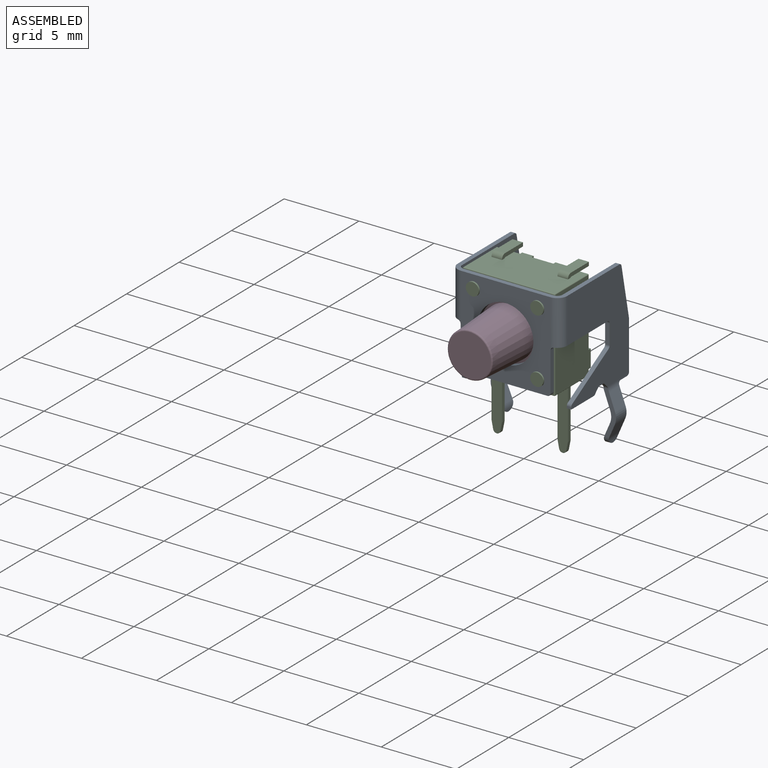
[diagram: assembled view]
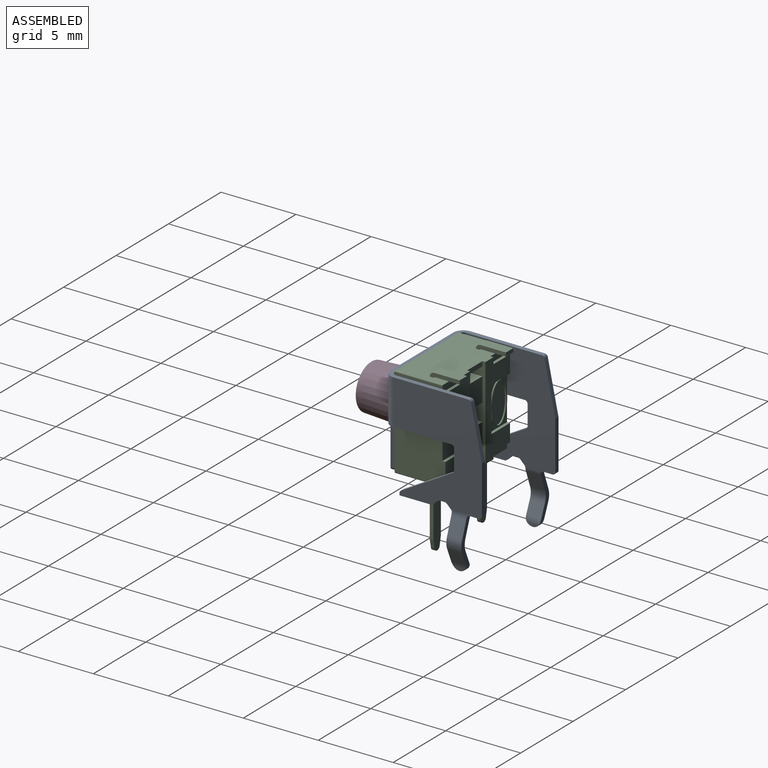
[diagram: assembled view, second angle]
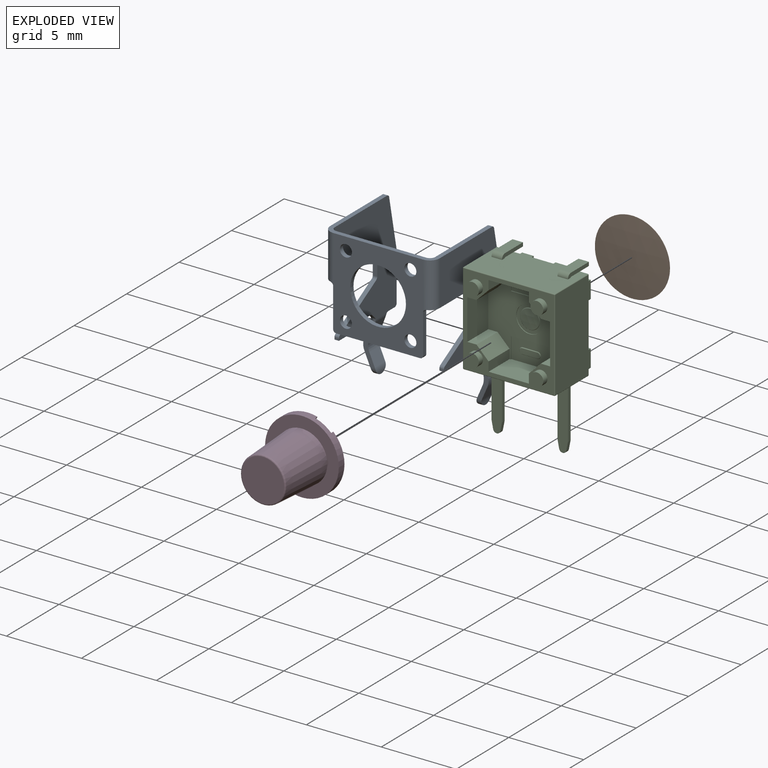
[diagram: exploded view]
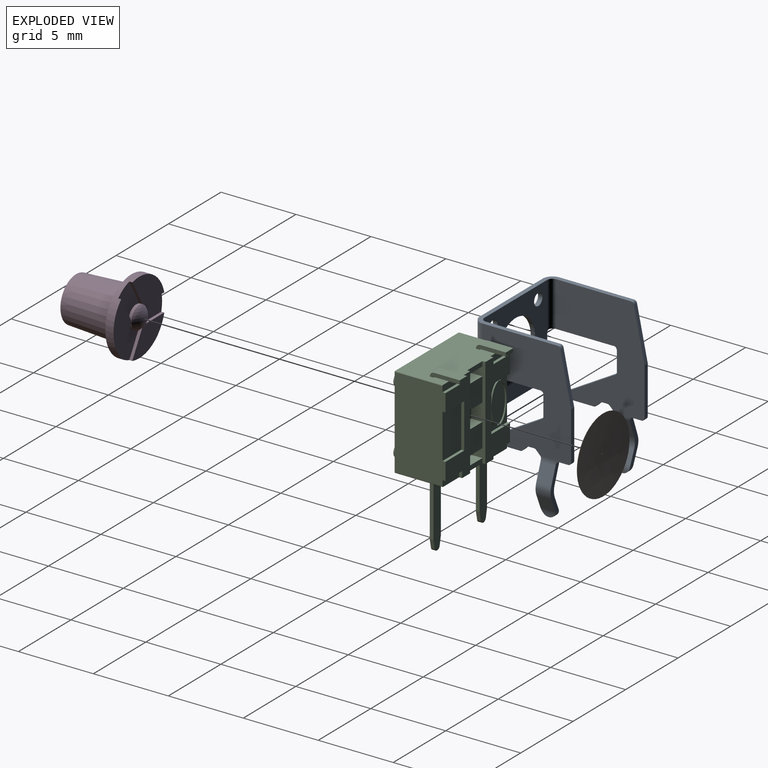
[diagram: exploded view, second angle]
ASSEMBLY  parts=4 mates=3
PART A: 97 faces, bbox 8.4x6.6x10.5 mm
  f0: cylinder r=1mm len=1mm, axis (0,1,0), area 0.8mm2, adj f40,f41,f57,f58
  f1: cylinder r=1mm len=1mm, axis (0,-1,0), area 0.8mm2, adj f27,f28,f54,f55
  f2: cylinder r=0.4mm len=0.8mm, axis (0,-1,0), area 0.8mm2, adj f13,f14
  f3: cylinder r=0.4mm len=0.8mm, axis (0,-1,0), area 0.8mm2, adj f13,f14
  f4: cylinder r=0.4mm len=0.8mm, axis (0,-1,0), area 0.8mm2, adj f13,f14
  f5: cylinder r=0.4mm len=0.8mm, axis (0,-1,0), area 0.8mm2, adj f13,f14
  f6: cylinder r=1.86mm len=3.71mm, axis (0,-1,0), area 3.5mm2, adj f13,f14
  f7: cylinder r=0.5mm len=1mm, axis (-1,0,0), area 0.5mm2, adj f40,f41,f59,f60,f61,f94,f95
  f8: cylinder r=0.5mm len=1mm, axis (1,0,0), area 0.5mm2, adj f27,f28,f52,f53,f54,f91,f92
  f9: plane 2.6x0.3mm, normal (1,0,0), area 0.8mm2, adj f13,f14,f63,f84
  f10: plane 2.6x0.3mm, normal (-1,0,0), area 0.8mm2, adj f13,f14,f64,f83
  f11: plane 7.3x5.64mm, normal (0,0,1), area 5.3mm2, adj f13,f14,f16,f17,f18,f19,f33,f34
  f12: plane 5.6x0.3mm, normal (0,0,-1), area 1.7mm2, adj f13,f14,f63,f64
  f13: plane 6x6mm, normal (0,1,0), area 23.2mm2, adj f2,f3,f4,f5,f6,f9,f10,f11
  f14: plane 6x6mm, normal (0,-1,0), area 23.2mm2, adj f2,f3,f4,f5,f6,f9,f10,f11
  f15: plane 4.47x0.45mm, normal (0,0,-1), area 1.3mm2, adj f16,f17,f18,f19,f84,f86
  f16: cylinder r=0.65mm len=3.2mm, axis (0,0,-1), area 3.1mm2, adj f11,f14,f15,f18,f84
  f17: cylinder r=0.35mm len=3.2mm, axis (0,0,-1), area 1.7mm2, adj f11,f13,f15,f19,f84
  f18: plane 7x5.9mm, normal (1,0,0), area 28mm2, adj f11,f15,f16,f20,f21,f22,f23,f24
  f19: plane 7.1x5.9mm, normal (-1,0,0), area 28.3mm2, adj f11,f15,f17,f20,f21,f22,f23,f24
  f20: plane 1.32x0.3mm, normal (0,-1,0), area 0.4mm2, adj f18,f19,f85,f86
  f21: plane 3.45x1.99mm, normal (0,-0.5,0.87), area 1.2mm2, adj f18,f19,f79,f85
  f22: plane 0.3x0.13mm, normal (0,-1,0), area 0mm2, adj f18,f19,f23,f79
  f23: plane 2.12x0.3mm, normal (0,0,-1), area 0.6mm2, adj f18,f19,f22,f75
  f24: plane 0.3x0.28mm, normal (0,0.71,-0.71), area 0.1mm2, adj f18,f19,f75,f76
  f25: plane 0.33x0.3mm, normal (0,0,-1), area 0.1mm2, adj f18,f19,f76,f78
  f26: plane 0.3x0.28mm, normal (0,-0.71,-0.71), area 0.1mm2, adj f18,f19,f77,f78,f89
  f27: plane 2.92x0.83mm, normal (0,-1,0), area 0.9mm2, adj f1,f8,f19,f49,f50,f51,f54,f55
  f28: plane 2.8x0.82mm, normal (0,1,0), area 0.9mm2, adj f1,f8,f49,f50,f51,f54,f55,f69
  f29: plane 0.6x0.3mm, normal (0,0,-1), area 0.2mm2, adj f19,f67,f69,f89
  f30: plane 3.18x0.3mm, normal (0,1,0), area 1mm2, adj f18,f19,f65,f67
  f31: plane 3.42x0.71mm, normal (0,0.98,0.2), area 1mm2, adj f18,f19,f65,f87
  f32: plane 4.47x0.45mm, normal (0,0,-1), area 1.3mm2, adj f33,f34,f35,f36,f82,f83
  f33: cylinder r=0.65mm len=3.2mm, axis (0,0,1), area 3.1mm2, adj f11,f14,f32,f35,f83
  f34: cylinder r=0.35mm len=3.2mm, axis (0,0,1), area 1.7mm2, adj f11,f13,f32,f36,f83
  f35: plane 7x5.9mm, normal (-1,0,0), area 28mm2, adj f11,f32,f33,f37,f38,f42,f43,f44
  f36: plane 7.1x5.9mm, normal (1,0,0), area 28.3mm2, adj f11,f32,f34,f37,f38,f39,f41,f42
  f37: plane 3.42x0.71mm, normal (0,0.98,0.2), area 1mm2, adj f35,f36,f66,f88
  f38: plane 3.18x0.3mm, normal (0,1,0), area 1mm2, adj f35,f36,f66,f68
  f39: plane 0.6x0.3mm, normal (0,0,-1), area 0.2mm2, adj f36,f68,f70,f90
  f40: plane 2.8x0.82mm, normal (0,1,0), area 0.9mm2, adj f0,f7,f56,f57,f58,f61,f62,f70
  f41: plane 2.92x0.83mm, normal (0,-1,0), area 0.9mm2, adj f0,f7,f36,f56,f57,f58,f61,f62
  f42: plane 0.3x0.28mm, normal (0,-0.71,-0.71), area 0.1mm2, adj f35,f36,f73,f74,f90
  f43: plane 0.33x0.3mm, normal (0,0,-1), area 0.1mm2, adj f35,f36,f72,f73
  f44: plane 0.3x0.28mm, normal (0,0.71,-0.71), area 0.1mm2, adj f35,f36,f71,f72
  f45: plane 2.12x0.3mm, normal (0,0,-1), area 0.6mm2, adj f35,f36,f46,f71
  f46: plane 0.3x0.13mm, normal (0,-1,0), area 0mm2, adj f35,f36,f45,f80
  f47: plane 3.45x1.99mm, normal (0,-0.5,0.87), area 1.2mm2, adj f35,f36,f80,f81
  f48: plane 1.32x0.3mm, normal (0,-1,0), area 0.4mm2, adj f35,f36,f81,f82
  f49: plane 1.03x0.1mm, normal (-0.98,0,-0.18), area 0.1mm2, adj f19,f27,f28,f50,f69
  f50: plane 1.17x1mm, normal (-0.94,0,-0.35), area 1.2mm2, adj f27,f28,f49,f93
  f51: plane 1x0.84mm, normal (-0.92,0,0.4), area 0.9mm2, adj f27,f28,f92,f93
  f52: plane 0.71x0.15mm, normal (-1,0,0), area 0.1mm2, adj f8,f92
  f53: plane 0.56x0.09mm, normal (1,0,0), area 0mm2, adj f8,f91
  f54: plane 1x0.89mm, normal (0.92,0,-0.4), area 1mm2, adj f1,f8,f27,f28,f91
  f55: plane 1.12x1mm, normal (0.94,0,0.35), area 1.2mm2, adj f1,f27,f28,f89
  f56: plane 1.03x0.1mm, normal (0.98,0,-0.18), area 0.1mm2, adj f36,f40,f41,f57,f70
  f57: plane 1.17x1mm, normal (0.94,0,-0.35), area 1.2mm2, adj f0,f40,f41,f56
  f58: plane 1x0.84mm, normal (0.92,0,0.4), area 0.9mm2, adj f0,f40,f41,f95
  f59: plane 0.71x0.15mm, normal (1,0,0), area 0.1mm2, adj f7,f95
  f60: plane 0.56x0.09mm, normal (-1,0,0), area 0mm2, adj f7,f94
  f61: plane 1x0.89mm, normal (-0.92,0,-0.4), area 1mm2, adj f7,f40,f41,f94,f96
  f62: plane 1.12x1mm, normal (-0.94,0,0.35), area 1.2mm2, adj f40,f41,f90,f96
  f63: cylinder r=0.2mm len=0.3mm, axis (0,-1,0), area 0.1mm2, adj f9,f12,f13,f14
  f64: cylinder r=0.2mm len=0.3mm, axis (0,-1,0), area 0.1mm2, adj f10,f12,f13,f14
  f65: cylinder r=0.2mm len=0.3mm, axis (-1,0,0), area 0mm2, adj f18,f19,f30,f31
  f66: cylinder r=0.2mm len=0.3mm, axis (1,0,0), area 0mm2, adj f35,f36,f37,f38
  f67: cylinder r=0.2mm len=0.3mm, axis (-1,0,0), area 0.1mm2, adj f18,f19,f29,f30,f89
  f68: cylinder r=0.2mm len=0.3mm, axis (1,0,0), area 0.1mm2, adj f35,f36,f38,f39,f90
  f69: cylinder r=0.2mm len=0.34mm, axis (1,0,0), area 0.1mm2, adj f19,f28,f29,f49,f89
  f70: cylinder r=0.2mm len=0.34mm, axis (-1,0,0), area 0.1mm2, adj f36,f39,f40,f56,f90
  f71: cylinder r=0.2mm len=0.3mm, axis (1,0,0), area 0mm2, adj f35,f36,f44,f45
  f72: cylinder r=0.2mm len=0.3mm, axis (-1,0,0), area 0mm2, adj f35,f36,f43,f44
  f73: cylinder r=0.2mm len=0.3mm, axis (-1,0,0), area 0mm2, adj f35,f36,f42,f43
  f74: cylinder r=0.2mm len=0.31mm, axis (-1,0,0), area 0mm2, adj f36,f41,f42,f90
  f75: cylinder r=0.2mm len=0.3mm, axis (-1,0,0), area 0mm2, adj f18,f19,f23,f24
  f76: cylinder r=0.2mm len=0.3mm, axis (1,0,0), area 0mm2, adj f18,f19,f24,f25
  f77: cylinder r=0.2mm len=0.31mm, axis (1,0,0), area 0mm2, adj f19,f26,f27,f89
  f78: cylinder r=0.2mm len=0.3mm, axis (1,0,0), area 0mm2, adj f18,f19,f25,f26
  f79: cylinder r=0.2mm len=0.3mm, axis (-1,0,0), area 0.1mm2, adj f18,f19,f21,f22
  f80: cylinder r=0.2mm len=0.3mm, axis (1,0,0), area 0.1mm2, adj f35,f36,f46,f47
  f81: cylinder r=0.2mm len=0.3mm, axis (-1,0,0), area 0.1mm2, adj f35,f36,f47,f48
  f82: cylinder r=0.2mm len=0.3mm, axis (-1,0,0), area 0.1mm2, adj f32,f35,f36,f48
  f83: cylinder r=0.2mm len=0.36mm, axis (0,1,0), area 0.1mm2, adj f10,f32,f33,f34
  f84: cylinder r=0.2mm len=0.36mm, axis (0,-1,0), area 0.1mm2, adj f9,f15,f16,f17
  f85: cylinder r=0.2mm len=0.3mm, axis (1,0,0), area 0.1mm2, adj f18,f19,f20,f21
  f86: cylinder r=0.2mm len=0.3mm, axis (1,0,0), area 0.1mm2, adj f15,f18,f19,f20
  f87: cylinder r=0.2mm len=0.3mm, axis (-1,0,0), area 0.1mm2, adj f11,f18,f19,f31
  f88: cylinder r=0.2mm len=0.3mm, axis (1,0,0), area 0.1mm2, adj f11,f35,f36,f37
  f89: cylinder r=1mm len=2.04mm, axis (0,1,0), area 0.4mm2, adj f18,f26,f27,f28,f29,f55,f67,f69
  f90: cylinder r=1mm len=2.04mm, axis (0,-1,0), area 0.4mm2, adj f35,f39,f40,f41,f42,f62,f68,f70
  f91: cylinder r=1mm len=1mm, axis (0,1,0), area 0.3mm2, adj f8,f53,f54
  f92: cylinder r=1mm len=1mm, axis (0,-1,0), area 0.4mm2, adj f8,f27,f28,f51,f52
  f93: cylinder r=1mm len=1mm, axis (0,1,0), area 0.8mm2, adj f27,f28,f50,f51
  f94: cylinder r=1mm len=1mm, axis (0,1,0), area 0.3mm2, adj f7,f60,f61
  f95: cylinder r=1mm len=1mm, axis (0,-1,0), area 0.4mm2, adj f7,f40,f41,f58,f59
  f96: cylinder r=1mm len=1mm, axis (0,-1,0), area 0.8mm2, adj f40,f41,f61,f62
PART B: 3 faces, bbox 5x0.2x5 mm
  f0: sphere r=31.3mm, area 19.7mm2, adj f2
  f1: sphere r=31.3mm, area 19.7mm2, adj f2
  f2: cylinder r=2.5mm len=5mm, axis (0,1,0), area 0.3mm2, adj f0,f1
PART C: 145 faces, bbox 6.8x4.4x10.9 mm
  f0: bspline ~2.76x1.5mm, area 0.3mm2, adj f15,f130,f131
  f1: bspline ~2.58x1.34mm, area 0.3mm2, adj f129,f131,f132
  f2: torus R=0.17mm, axis (0,1,0), area 0mm2, adj f3,f89,f101,f102
  f3: torus R=0.23mm, axis (0,1,0), area 0mm2, adj f2,f21,f98,f100
  f4: torus R=0.23mm, axis (0,1,0), area 0mm2, adj f20,f92,f93,f96
  f5: torus R=0.17mm, axis (0,-1,0), area 0mm2, adj f90,f91,f94,f95
  f6: torus R=0.68mm, axis (0,-1,0), area 0.2mm2, adj f9,f82
  f7: torus R=0.62mm, axis (0,1,0), area 0.1mm2, adj f8,f9
  f8: sphere r=4.25mm, area 1.2mm2, adj f7
  f9: cylinder r=0.65mm len=1.3mm, axis (0,-1,0), area 0mm2, adj f6,f7
  f10: cylinder r=0.9mm len=1.8mm, axis (0,-1,0), area 0.3mm2, adj f50,f82
  f11: cylinder r=0.43mm len=0.87mm, axis (0,1,0), area 1.1mm2, adj f31,f54
  f12: cylinder r=0.43mm len=0.87mm, axis (0,1,0), area 1.1mm2, adj f31,f53
  f13: cylinder r=0.43mm len=0.87mm, axis (0,1,0), area 1.1mm2, adj f31,f52
  f14: cylinder r=0.43mm len=0.87mm, axis (0,1,0), area 1.1mm2, adj f31,f51
  f15: plane 2.98x1.78mm, normal (0,1,0), area 2.1mm2, adj f0,f32,f57,f58,f59,f130
  f16: plane 6.05x3.37mm, normal (0,0,1), area 19.1mm2, adj f24,f26,f29,f61,f62,f63,f64,f65
  f17: cylinder r=0.24mm len=0.48mm, axis (0,1,0), area 0.2mm2, adj f108,f110,f113,f114
  f18: cylinder r=0.24mm len=0.48mm, axis (0,1,0), area 0.2mm2, adj f104,f106,f111,f112
  f19: plane 6.05x3.37mm, normal (0,0,-1), area 19.1mm2, adj f22,f28,f30,f55,f62,f63,f64,f71
  f20: plane 2.5x1.4mm, normal (0,-1,0), area 2.9mm2, adj f4,f47,f83,f84,f85,f91,f92,f93
  f21: plane 2.5x1.4mm, normal (0,-1,0), area 2.9mm2, adj f3,f39,f86,f87,f88,f97,f98,f100
  f22: plane 1.45x0.31mm, normal (0,1,0), area 0.4mm2, adj f19,f62,f64,f79
  f23: plane 1.58x1.45mm, normal (0,1,0), area 2.3mm2, adj f62,f64,f74,f76
  f24: plane 1.45x0.31mm, normal (0,1,0), area 0.4mm2, adj f16,f62,f64,f73
  f25: plane 1.58x1.45mm, normal (0,1,0), area 2.3mm2, adj f62,f64,f77,f80
  f26: plane 1.58x0.43mm, normal (0,1,0), area 0.7mm2, adj f16,f33,f65,f66,f133
  f27: plane 2.98x1.78mm, normal (0,1,0), area 5.3mm2, adj f33,f67,f68,f69
  f28: plane 1.58x0.43mm, normal (0,1,0), area 0.7mm2, adj f19,f33,f70,f71,f138
  f29: plane 1.58x0.43mm, normal (0,1,0), area 0.7mm2, adj f16,f32,f60,f61,f135
  f30: plane 1.58x0.43mm, normal (0,1,0), area 0.7mm2, adj f19,f32,f55,f56,f144
  f31: plane 6.05x6.05mm, normal (0,-1,0), area 10.4mm2, adj f11,f12,f13,f14,f34,f35,f36,f37
  f32: plane 6.05x3.37mm, normal (-1,0,0), area 19.6mm2, adj f15,f29,f30,f56,f57,f59,f60,f63
  f33: plane 6.05x3.37mm, normal (1,0,0), area 19.6mm2, adj f26,f27,f28,f66,f67,f69,f70,f72
  f34: plane 2x0.62mm, normal (0,0,1), area 1.2mm2, adj f31,f35,f49,f50
  f35: plane 2.69x2mm, normal (1,0,0), area 5.4mm2, adj f31,f34,f36,f50
  f36: plane 2x0.62mm, normal (0,0,-1), area 1.2mm2, adj f31,f35,f37,f50
  f37: plane 2x0.8mm, normal (0.71,0,-0.71), area 2.3mm2, adj f31,f36,f38,f50
  f38: plane 2x0.62mm, normal (1,0,0), area 1.2mm2, adj f31,f37,f39,f50
  f39: plane 2.69x2.05mm, normal (0,0,-1), area 5.5mm2, adj f21,f31,f38,f40,f50,f86,f88
  f40: plane 2x0.62mm, normal (-1,0,0), area 1.2mm2, adj f31,f39,f41,f50
  f41: plane 2x0.8mm, normal (-0.71,0,-0.71), area 2.3mm2, adj f31,f40,f42,f50
  f42: plane 2x0.62mm, normal (0,0,-1), area 1.2mm2, adj f31,f41,f43,f50
  f43: plane 2.69x2mm, normal (-1,0,0), area 5.4mm2, adj f31,f42,f44,f50
  f44: plane 2x0.62mm, normal (0,0,1), area 1.2mm2, adj f31,f43,f45,f50
  f45: plane 2x0.8mm, normal (-0.71,0,0.71), area 2.3mm2, adj f31,f44,f46,f50
  f46: plane 2x0.62mm, normal (-1,0,0), area 1.2mm2, adj f31,f45,f47,f50
  f47: plane 2.69x2.05mm, normal (0,0,1), area 5.5mm2, adj f20,f31,f46,f48,f50,f83,f85
  f48: plane 2x0.62mm, normal (1,0,0), area 1.2mm2, adj f31,f47,f49,f50
  f49: plane 2x0.8mm, normal (0.71,0,0.71), area 2.3mm2, adj f31,f34,f48,f50
  f50: plane 5.53x5.53mm, normal (0,-1,0), area 14.3mm2, adj f10,f34,f35,f36,f37,f38,f39,f40
  f51: plane 0.87x0.87mm, normal (0,-1,0), area 0.6mm2, adj f14
  f52: plane 0.87x0.87mm, normal (0,-1,0), area 0.6mm2, adj f13
  f53: plane 0.87x0.87mm, normal (0,-1,0), area 0.6mm2, adj f12
  f54: plane 0.87x0.87mm, normal (0,-1,0), area 0.6mm2, adj f11
  f55: plane 0.43x0.2mm, normal (-1,0,0), area 0.1mm2, adj f19,f30,f56,f63
  f56: plane 1.58x0.2mm, normal (0,0,-1), area 0.3mm2, adj f30,f32,f55,f63
  f57: plane 1.78x0.2mm, normal (0,0,1), area 0.4mm2, adj f15,f32,f58,f63
  f58: plane 2.98x0.2mm, normal (-1,0,0), area 0.6mm2, adj f15,f57,f59,f63
  f59: plane 1.78x0.2mm, normal (0,0,-1), area 0.4mm2, adj f15,f32,f58,f63
  f60: plane 1.58x0.2mm, normal (0,0,1), area 0.3mm2, adj f29,f32,f61,f63
  f61: plane 0.43x0.2mm, normal (-1,0,0), area 0.1mm2, adj f16,f29,f60,f63
  f62: plane 6.15x0.95mm, normal (1,0,0), area 3mm2, adj f16,f19,f22,f23,f24,f25,f63,f73
  f63: plane 6.15x2.35mm, normal (0,1,0), area 7.8mm2, adj f16,f19,f32,f55,f56,f57,f58,f59
  f64: plane 6.15x0.95mm, normal (-1,0,0), area 3mm2, adj f16,f19,f22,f23,f24,f25,f72,f73
  f65: plane 0.43x0.2mm, normal (1,0,0), area 0.1mm2, adj f16,f26,f66,f72
  f66: plane 1.58x0.2mm, normal (0,0,1), area 0.3mm2, adj f26,f33,f65,f72
  f67: plane 1.78x0.2mm, normal (0,0,-1), area 0.4mm2, adj f27,f33,f68,f72
  f68: plane 2.98x0.2mm, normal (1,0,0), area 0.6mm2, adj f27,f67,f69,f72
  f69: plane 1.78x0.2mm, normal (0,0,1), area 0.4mm2, adj f27,f33,f68,f72
  f70: plane 1.58x0.2mm, normal (0,0,-1), area 0.3mm2, adj f28,f33,f71,f72
  f71: plane 0.43x0.2mm, normal (1,0,0), area 0.1mm2, adj f19,f28,f70,f72
  f72: plane 6.15x2.35mm, normal (0,1,0), area 7.8mm2, adj f16,f19,f33,f64,f65,f66,f67,f68
  f73: plane 1.45x0.75mm, normal (0,0,-1), area 1.1mm2, adj f24,f62,f64,f75
  f74: plane 1.45x0.75mm, normal (0,0,1), area 1.1mm2, adj f23,f62,f64,f75
  f75: plane 1.45x0.6mm, normal (0,1,0), area 0.9mm2, adj f62,f64,f73,f74
  f76: plane 1.45x0.75mm, normal (0,0,-1), area 1.1mm2, adj f23,f62,f64,f78
  f77: plane 1.45x0.75mm, normal (0,0,1), area 1.1mm2, adj f25,f62,f64,f78
  f78: plane 1.45x1.17mm, normal (0,1,0), area 1.7mm2, adj f62,f64,f76,f77
  f79: plane 1.45x0.75mm, normal (0,0,1), area 1.1mm2, adj f22,f62,f64,f81
  f80: plane 1.45x0.75mm, normal (0,0,-1), area 1.1mm2, adj f25,f62,f64,f81
  f81: plane 1.45x0.6mm, normal (0,1,0), area 0.9mm2, adj f62,f64,f79,f80
  f82: plane 1.8x1.8mm, normal (0,-1,0), area 1.1mm2, adj f6,f10
  f83: plane 1.4x0.05mm, normal (1,0,0), area 0.1mm2, adj f20,f47,f50,f84
  f84: plane 2.5x0.05mm, normal (0,0,-1), area 0.1mm2, adj f20,f50,f83,f85
  f85: plane 1.4x0.05mm, normal (-1,0,0), area 0.1mm2, adj f20,f47,f50,f84
  f86: plane 1.4x0.05mm, normal (-1,0,0), area 0.1mm2, adj f21,f39,f50,f87
  f87: plane 2.5x0.05mm, normal (0,0,1), area 0.1mm2, adj f21,f50,f86,f88
  f88: plane 1.4x0.05mm, normal (1,0,0), area 0.1mm2, adj f21,f39,f50,f87
  f89: plane 1.35x0.35mm, normal (0,-1,0), area 0.4mm2, adj f2,f99,f101,f102
  f90: plane 1.35x0.35mm, normal (0,-1,0), area 0.4mm2, adj f5,f94,f95,f96
  f91: torus R=0.23mm, axis (0,1,0), area 0mm2, adj f5,f20,f92,f93
  f92: cylinder r=0.03mm len=1mm, axis (1,0,0), area 0mm2, adj f4,f20,f91,f94
  f93: cylinder r=0.03mm len=1mm, axis (-1,0,0), area 0mm2, adj f4,f20,f91,f95
  f94: cylinder r=0.03mm len=1mm, axis (1,0,0), area 0mm2, adj f5,f90,f92,f96
  f95: cylinder r=0.03mm len=1mm, axis (-1,0,0), area 0mm2, adj f5,f90,f93,f96
  f96: torus R=0.17mm, axis (0,-1,0), area 0mm2, adj f4,f90,f94,f95
  f97: torus R=0.23mm, axis (0,1,0), area 0mm2, adj f21,f98,f99,f100
  f98: cylinder r=0.03mm len=1mm, axis (1,0,0), area 0mm2, adj f3,f21,f97,f101
  f99: torus R=0.17mm, axis (0,1,0), area 0mm2, adj f89,f97,f101,f102
  f100: cylinder r=0.03mm len=1mm, axis (-1,0,0), area 0mm2, adj f3,f21,f97,f102
  f101: cylinder r=0.03mm len=1mm, axis (-1,0,0), area 0mm2, adj f2,f89,f98,f99
  f102: cylinder r=0.03mm len=1mm, axis (1,0,0), area 0mm2, adj f2,f89,f99,f100
  f103: plane 3.65x0.25mm, normal (-1,0,0), area 0.9mm2, adj f19,f104,f106,f111
  f104: plane 4.4x0.7mm, normal (0,1,0), area 3mm2, adj f18,f19,f103,f105,f111,f112
  f105: plane 3.65x0.25mm, normal (1,0,0), area 0.9mm2, adj f19,f104,f106,f112
  f106: plane 4.4x0.7mm, normal (0,-1,0), area 3mm2, adj f18,f19,f103,f105,f111,f112
  f107: plane 3.65x0.25mm, normal (1,0,0), area 0.9mm2, adj f19,f108,f110,f114
  f108: plane 4.4x0.7mm, normal (0,-1,0), area 3mm2, adj f17,f19,f107,f109,f113,f114
  f109: plane 3.65x0.25mm, normal (-1,0,0), area 0.9mm2, adj f19,f108,f110,f113
  f110: plane 4.4x0.7mm, normal (0,1,0), area 3mm2, adj f17,f19,f107,f109,f113,f114
  f111: plane 0.55x0.25mm, normal (-0.98,0,-0.2), area 0.1mm2, adj f18,f103,f104,f106
  f112: plane 0.55x0.25mm, normal (0.98,0,-0.2), area 0.1mm2, adj f18,f104,f105,f106
  f113: plane 0.55x0.25mm, normal (-0.98,0,-0.2), area 0.1mm2, adj f17,f108,f109,f110
  f114: plane 0.55x0.25mm, normal (0.98,0,-0.2), area 0.1mm2, adj f17,f107,f108,f110
  f115: plane 1.7x0.7mm, normal (0,0,-1), area 1.2mm2, adj f116,f118,f119,f128
  f116: plane 0.7x0.25mm, normal (0,1,0), area 0.2mm2, adj f115,f117,f118,f119
  f117: plane 1.7x0.7mm, normal (0,0,1), area 1.2mm2, adj f116,f118,f119,f120
  f118: plane 2x0.3mm, normal (1,0,0), area 0.5mm2, adj f16,f115,f116,f117,f120,f128
  f119: plane 2x0.3mm, normal (-1,0,0), area 0.5mm2, adj f16,f115,f116,f117,f120,f128
  f120: cylinder r=0.3mm len=0.7mm, axis (-1,0,0), area 0.3mm2, adj f16,f117,f118,f119
  f121: plane 1.7x0.7mm, normal (0,0,1), area 1.2mm2, adj f122,f124,f125,f126
  f122: plane 0.7x0.25mm, normal (0,1,0), area 0.2mm2, adj f121,f123,f124,f125
  f123: plane 1.7x0.7mm, normal (0,0,-1), area 1.2mm2, adj f122,f124,f125,f127
  f124: plane 2x0.3mm, normal (-1,0,0), area 0.5mm2, adj f16,f121,f122,f123,f126,f127
  f125: plane 2x0.3mm, normal (1,0,0), area 0.5mm2, adj f16,f121,f122,f123,f126,f127
  f126: cylinder r=0.3mm len=0.7mm, axis (1,0,0), area 0.3mm2, adj f16,f121,f124,f125
  f127: cylinder r=0.05mm len=0.7mm, axis (-1,0,0), area 0.1mm2, adj f16,f123,f124,f125
  f128: cylinder r=0.05mm len=0.7mm, axis (1,0,0), area 0.1mm2, adj f16,f115,f118,f119
  f129: bspline ~2.58x1.34mm, area 0.3mm2, adj f1,f131,f132
  f130: bspline ~2.76x1.5mm, area 0.3mm2, adj f0,f15,f131
  f131: plane 2.76x1.66mm, normal (0,1,0), area 0.5mm2, adj f0,f1,f129,f130
  f132: plane 2.58x1.58mm, normal (0,1,0), area 2.7mm2, adj f1,f129
  f133: cylinder r=0.05mm len=3.17mm, axis (0,-1,0), area 0.2mm2, adj f16,f26,f33,f134
  f134: sphere r=0.05mm, area 0mm2, adj f133,f136,f137
  f135: cylinder r=0.05mm len=3.17mm, axis (0,-1,0), area 0.2mm2, adj f16,f29,f32,f139
  f136: cylinder r=0.05mm len=6.05mm, axis (-1,0,0), area 0.5mm2, adj f16,f31,f134,f139
  f137: cylinder r=0.05mm len=6.05mm, axis (0,0,1), area 0.5mm2, adj f31,f33,f134,f140
  f138: cylinder r=0.05mm len=3.17mm, axis (0,-1,0), area 0.2mm2, adj f19,f28,f33,f140
  f139: sphere r=0.05mm, area 0mm2, adj f135,f136,f141
  f140: sphere r=0.05mm, area 0mm2, adj f137,f138,f142
  f141: cylinder r=0.05mm len=6.05mm, axis (0,0,-1), area 0.5mm2, adj f31,f32,f139,f143
  f142: cylinder r=0.05mm len=6.05mm, axis (1,0,0), area 0.5mm2, adj f19,f31,f140,f143
  f143: sphere r=0.05mm, area 0mm2, adj f141,f142,f144
  f144: cylinder r=0.05mm len=3.17mm, axis (0,-1,0), area 0.2mm2, adj f19,f30,f32,f143
PART D: 20 faces, bbox 4.9x4.7x4.9 mm
  f0: sphere r=0.9mm, area 2.3mm2, adj f1
  f1: cylinder r=0.75mm len=1.5mm, axis (0,1,0), area 0.9mm2, adj f0,f13
  f2: torus R=1.41mm, axis (0,-1,0), area 1.4mm2, adj f3,f11
  f3: cone r=1.5mm half-angle=3deg, axis (0,1,0), area 36.5mm2, adj f2,f9
  f4: cylinder r=2.46mm len=4.92mm, axis (0,1,0), area 7.6mm2, adj f5,f7,f9,f10,f13,f14,f15,f16
  f5: plane 3.05x1.85mm, normal (0,1,0), area 3.6mm2, adj f4,f6,f15,f18
  f6: cylinder r=0.78mm len=0.2mm, axis (0,1,0), area 0mm2, adj f5,f13,f15,f18
  f7: plane 3.05x1.85mm, normal (0,1,0), area 3.6mm2, adj f4,f8,f16,f19
  f8: cylinder r=0.78mm len=0.2mm, axis (0,1,0), area 0mm2, adj f7,f13,f16,f19
  f9: plane 4.92x4.92mm, normal (0,-1,0), area 10mm2, adj f3,f4
  f10: plane 3.52x1.69mm, normal (0,1,0), area 3.6mm2, adj f4,f12,f14,f17
  f11: plane 2.81x2.81mm, normal (0,-1,0), area 6.2mm2, adj f2
  f12: cylinder r=0.78mm len=0.22mm, axis (0,1,0), area 0mm2, adj f10,f13,f14,f17
  f13: plane 4.74x4.18mm, normal (0,1,0), area 6.5mm2, adj f1,f4,f6,f8,f12,f14,f15,f16
  f14: plane 1.65x0.95mm, normal (-0.87,0,-0.5), area 0.4mm2, adj f4,f10,f12,f13
  f15: plane 1.65x0.95mm, normal (0.87,0,0.5), area 0.4mm2, adj f4,f5,f6,f13
  f16: plane 1.65x0.95mm, normal (0.87,0,-0.5), area 0.4mm2, adj f4,f7,f8,f13
  f17: plane 1.65x0.95mm, normal (-0.87,0,0.5), area 0.4mm2, adj f4,f10,f12,f13
  f18: plane 1.91x0.2mm, normal (0,0,1), area 0.4mm2, adj f4,f5,f6,f13
  f19: plane 1.91x0.2mm, normal (0,0,-1), area 0.4mm2, adj f4,f7,f8,f13
PLACE A t=(4.46,6.59,3.91)mm
PLACE B t=(4.46,6.59,3.91)mm
PLACE C t=(4.46,6.59,3.91)mm
PLACE D t=(4.46,6.59,3.91)mm
MATE fastened D.f1 <-> A.f6  axis (0,-1,0) through (4.46,4.34,7.91)mm
MATE fastened B.f2 <-> C.f6  axis (0,-1,0) through (4.46,6.34,7.91)mm
MATE fastened C.f14 <-> A.f5  axis (0,-1,0) through (6.61,4.34,10.06)mm
